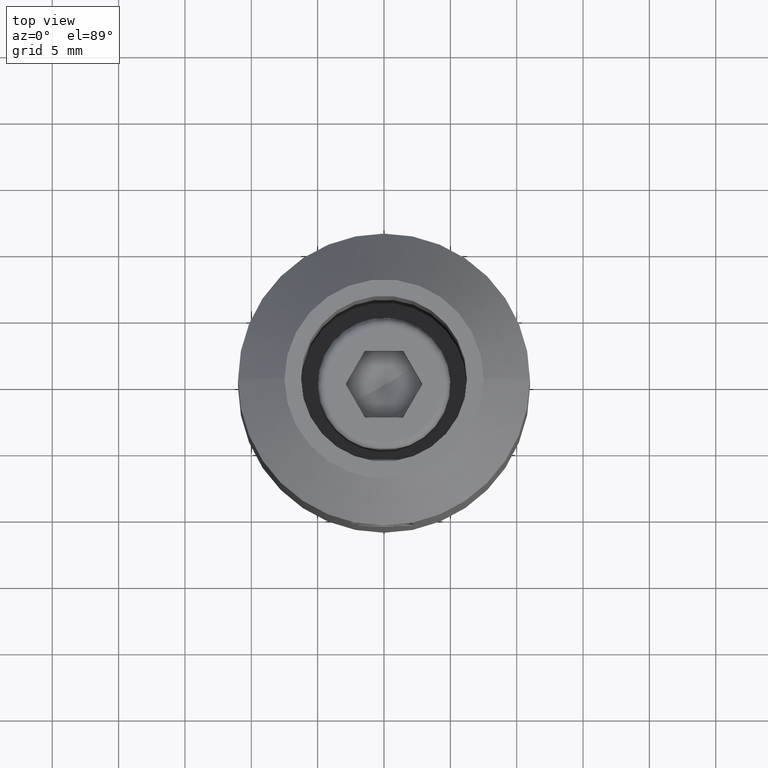
[diagram: clean part render]
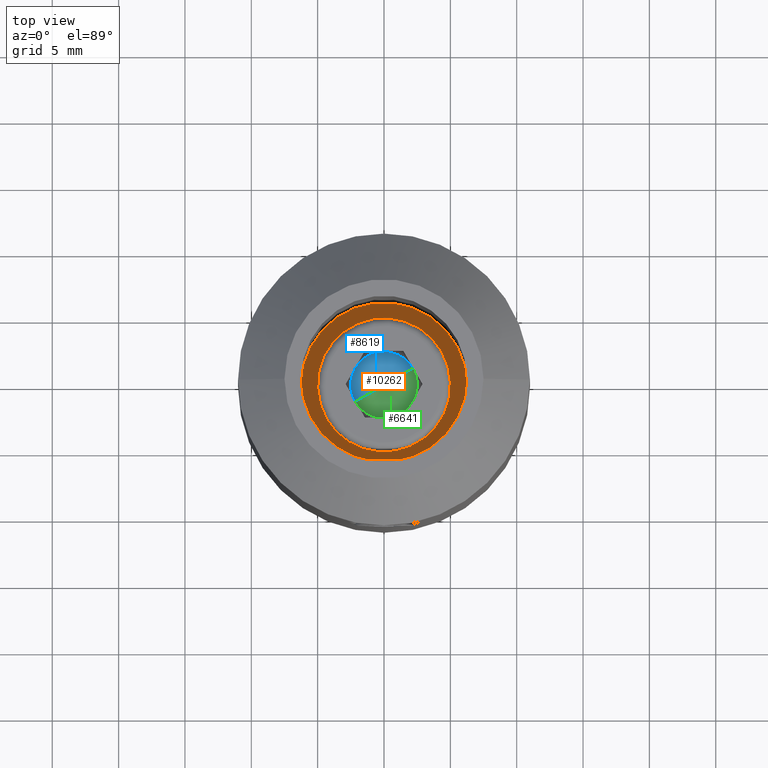
[diagram: same view with three faces highlighted in distinct colors, each labeled with its STEP entity id]
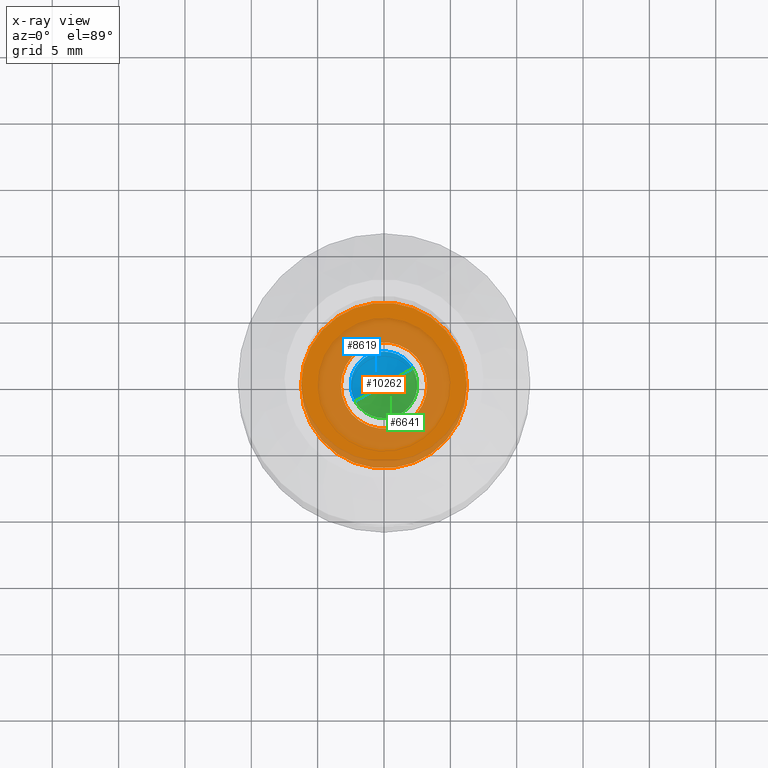
[diagram: x-ray of the same camera — body ghosted, the three highlighted faces saturated]
A machine part, top view with three faces highlighted in distinct colors.
The next image is the same camera in x-ray (body ghosted, the three faces saturated) — at least one of them is partly hidden behind the body in this view.
Their STEP definitions:

[orange] entity #10262 — the highlighted planar face has unit normal (0, 0, 1).
#216 = EDGE_LOOP ( 'NONE', ( #10873, #15915 ) ) ;
#327 = ORIENTED_EDGE ( 'NONE', *, *, #17705, .F. ) ;
#735 = AXIS2_PLACEMENT_3D ( 'NONE', #1777, #10003, #16842 ) ;
#1076 = VERTEX_POINT ( 'NONE', #19168 ) ;
#1777 = CARTESIAN_POINT ( 'NONE',  ( 0.000000000000000000, 0.000000000000000000, 5.499999999999998224 ) ) ;
#2275 = CARTESIAN_POINT ( 'NONE',  ( -6.250000000000000000, 0.000000000000000000, 5.499999999999998224 ) ) ;
#3043 = AXIS2_PLACEMENT_3D ( 'NONE', #8628, #6846, #15261 ) ;
#4596 = CARTESIAN_POINT ( 'NONE',  ( 0.000000000000000000, 0.000000000000000000, 5.500000000000000000 ) ) ;
#4728 = DIRECTION ( 'NONE',  ( -1.000000000000000000, 0.000000000000000000, 0.000000000000000000 ) ) ;
#5354 = FACE_OUTER_BOUND ( 'NONE', #12962, .T. ) ;
#5500 = CIRCLE ( 'NONE', #735, 6.250000000000000000 ) ;
#6496 = DIRECTION ( 'NONE',  ( -0.000000000000000000, -0.000000000000000000, -1.000000000000000000 ) ) ;
#6846 = DIRECTION ( 'NONE',  ( 0.000000000000000000, 0.000000000000000000, 1.000000000000000000 ) ) ;
#7313 = DIRECTION ( 'NONE',  ( -0.000000000000000000, -0.000000000000000000, -1.000000000000000000 ) ) ;
#7436 = AXIS2_PLACEMENT_3D ( 'NONE', #9179, #7313, #9025 ) ;
#8484 = EDGE_CURVE ( 'NONE', #1076, #11543, #11512, .T. ) ;
#8628 = CARTESIAN_POINT ( 'NONE',  ( 0.000000000000000000, 6.250000000000000000, 5.499999999999999112 ) ) ;
#9025 = DIRECTION ( 'NONE',  ( -1.000000000000000000, 0.000000000000000000, 0.000000000000000000 ) ) ;
#9179 = CARTESIAN_POINT ( 'NONE',  ( 0.000000000000000000, 0.000000000000000000, 5.499999999999998224 ) ) ;
#9484 = DIRECTION ( 'NONE',  ( -0.000000000000000000, -0.000000000000000000, -1.000000000000000000 ) ) ;
#9941 = AXIS2_PLACEMENT_3D ( 'NONE', #4596, #9484, #12932 ) ;
#10003 = DIRECTION ( 'NONE',  ( -0.000000000000000000, -0.000000000000000000, -1.000000000000000000 ) ) ;
#10262 = ADVANCED_FACE ( 'NONE', ( #12764, #5354 ), #11956, .T. ) ;
#10532 = VERTEX_POINT ( 'NONE', #21671 ) ;
#10873 = ORIENTED_EDGE ( 'NONE', *, *, #8484, .T. ) ;
#11134 = CIRCLE ( 'NONE', #9941, 3.250000000000000000 ) ;
#11512 = CIRCLE ( 'NONE', #13793, 3.250000000000000000 ) ;
#11543 = VERTEX_POINT ( 'NONE', #12082 ) ;
#11956 = PLANE ( 'NONE',  #3043 ) ;
#12082 = CARTESIAN_POINT ( 'NONE',  ( 3.250000000000000000, 3.980102097228897738E-16, 5.500000000000000000 ) ) ;
#12764 = FACE_BOUND ( 'NONE', #216, .T. ) ;
#12932 = DIRECTION ( 'NONE',  ( -1.000000000000000000, 0.000000000000000000, 0.000000000000000000 ) ) ;
#12962 = EDGE_LOOP ( 'NONE', ( #327, #19903 ) ) ;
#13101 = EDGE_CURVE ( 'NONE', #11543, #1076, #11134, .T. ) ;
#13793 = AXIS2_PLACEMENT_3D ( 'NONE', #19573, #6496, #4728 ) ;
#15102 = EDGE_CURVE ( 'NONE', #10532, #15838, #5500, .T. ) ;
#15261 = DIRECTION ( 'NONE',  ( 1.000000000000000000, 0.000000000000000000, -0.000000000000000000 ) ) ;
#15838 = VERTEX_POINT ( 'NONE', #2275 ) ;
#15915 = ORIENTED_EDGE ( 'NONE', *, *, #13101, .T. ) ;
#16108 = CIRCLE ( 'NONE', #7436, 6.250000000000000000 ) ;
#16842 = DIRECTION ( 'NONE',  ( -1.000000000000000000, 0.000000000000000000, 0.000000000000000000 ) ) ;
#17705 = EDGE_CURVE ( 'NONE', #15838, #10532, #16108, .T. ) ;
#19168 = CARTESIAN_POINT ( 'NONE',  ( -3.250000000000000000, 0.000000000000000000, 5.500000000000000000 ) ) ;
#19573 = CARTESIAN_POINT ( 'NONE',  ( 0.000000000000000000, 0.000000000000000000, 5.500000000000000000 ) ) ;
#19903 = ORIENTED_EDGE ( 'NONE', *, *, #15102, .F. ) ;
#21671 = CARTESIAN_POINT ( 'NONE',  ( 6.250000000000000000, 7.654042494670957606E-16, 5.499999999999998224 ) ) ;

[blue] entity #8619 — the highlighted conical surface has half-angle 60 deg.
#106 = VECTOR ( 'NONE', #13932, 1000.000000000000000 ) ;
#549 = EDGE_CURVE ( 'NONE', #8212, #15463, #3555, .T. ) ;
#578 = DIRECTION ( 'NONE',  ( -1.000000000000000000, 0.000000000000000000, 0.000000000000000000 ) ) ;
#708 = DIRECTION ( 'NONE',  ( -1.000000000000000000, 0.000000000000000000, 0.000000000000000000 ) ) ;
#2892 = CARTESIAN_POINT ( 'NONE',  ( 2.999999999999999112, 2.173723763498971007, 1.255000000000011440 ) ) ;
#3232 = VECTOR ( 'NONE', #15455, 1000.000000000000000 ) ;
#3555 = LINE ( 'NONE', #8624, #106 ) ;
#3569 = CONICAL_SURFACE ( 'NONE', #5012, 2.510000000000030873, 1.047197551196591636 ) ;
#3926 = CARTESIAN_POINT ( 'NONE',  ( 2.999999999999999112, -2.602085213965210642E-15, -2.510000000000048637 ) ) ;
#5012 = AXIS2_PLACEMENT_3D ( 'NONE', #10650, #578, #15859 ) ;
#5066 = VERTEX_POINT ( 'NONE', #5460 ) ;
#5446 = DIRECTION ( 'NONE',  ( -1.000000000000000000, 0.000000000000000000, 0.000000000000000000 ) ) ;
#5460 = CARTESIAN_POINT ( 'NONE',  ( 2.999999999999999112, 3.469446951953614189E-15, 2.510000000000049081 ) ) ;
#5919 = CARTESIAN_POINT ( 'NONE',  ( 2.999999999999999112, 2.173723763498981665, -1.255000000000027427 ) ) ;
#6782 = EDGE_CURVE ( 'NONE', #5066, #11659, #15473, .T. ) ;
#6831 = ORIENTED_EDGE ( 'NONE', *, *, #20702, .T. ) ;
#7007 = FACE_OUTER_BOUND ( 'NONE', #20938, .T. ) ;
#7450 = CARTESIAN_POINT ( 'NONE',  ( 2.999999999999999112, 0.000000000000000000, 0.000000000000000000 ) ) ;
#7743 = LINE ( 'NONE', #15021, #3232 ) ;
#8212 = VERTEX_POINT ( 'NONE', #9350 ) ;
#8619 = ADVANCED_FACE ( 'NONE', ( #7007 ), #3569, .F. ) ;
#8624 = CARTESIAN_POINT ( 'NONE',  ( 2.999999999999999112, 5.602039951023359887E-15, -2.510000000000030873 ) ) ;
#9350 = CARTESIAN_POINT ( 'NONE',  ( 4.449149175665981559, 3.650619993700436680E-17, 6.018531076210112041E-33 ) ) ;
#10055 = DIRECTION ( 'NONE',  ( -1.000000000000000000, 0.000000000000000000, 0.000000000000000000 ) ) ;
#10650 = CARTESIAN_POINT ( 'NONE',  ( 2.999999999999999112, 0.000000000000000000, 0.000000000000000000 ) ) ;
#10678 = EDGE_CURVE ( 'NONE', #8212, #5066, #7743, .T. ) ;
#11382 = AXIS2_PLACEMENT_3D ( 'NONE', #12533, #708, #12744 ) ;
#11659 = VERTEX_POINT ( 'NONE', #2892 ) ;
#12115 = CIRCLE ( 'NONE', #20054, 2.510000000000030873 ) ;
#12533 = CARTESIAN_POINT ( 'NONE',  ( 2.999999999999999112, 0.000000000000000000, 0.000000000000000000 ) ) ;
#12744 = DIRECTION ( 'NONE',  ( 0.000000000000000000, -2.109423746787771394E-15, 1.000000000000000000 ) ) ;
#12750 = VERTEX_POINT ( 'NONE', #5919 ) ;
#13299 = CARTESIAN_POINT ( 'NONE',  ( 2.999999999999999112, 0.000000000000000000, 0.000000000000000000 ) ) ;
#13932 = DIRECTION ( 'NONE',  ( -0.5000000000000006661, 1.932872075936852602E-15, -0.8660254037844382635 ) ) ;
#15021 = CARTESIAN_POINT ( 'NONE',  ( 2.999999999999999112, -5.294653604437371289E-15, 2.510000000000030873 ) ) ;
#15455 = DIRECTION ( 'NONE',  ( -0.5000000000000006661, -1.826814552064362379E-15, 0.8660254037844382635 ) ) ;
#15463 = VERTEX_POINT ( 'NONE', #3926 ) ;
#15473 = CIRCLE ( 'NONE', #11382, 2.510000000000030873 ) ;
#15859 = DIRECTION ( 'NONE',  ( 0.000000000000000000, -2.109423746787771394E-15, 1.000000000000000000 ) ) ;
#16352 = AXIS2_PLACEMENT_3D ( 'NONE', #7450, #5446, #17267 ) ;
#17258 = ORIENTED_EDGE ( 'NONE', *, *, #549, .F. ) ;
#17267 = DIRECTION ( 'NONE',  ( 0.000000000000000000, -2.109423746787771394E-15, 1.000000000000000000 ) ) ;
#17884 = ORIENTED_EDGE ( 'NONE', *, *, #10678, .T. ) ;
#19341 = EDGE_CURVE ( 'NONE', #12750, #15463, #20047, .T. ) ;
#19820 = ORIENTED_EDGE ( 'NONE', *, *, #19341, .T. ) ;
#19975 = ORIENTED_EDGE ( 'NONE', *, *, #6782, .T. ) ;
#20009 = DIRECTION ( 'NONE',  ( 0.000000000000000000, -2.109423746787771394E-15, 1.000000000000000000 ) ) ;
#20047 = CIRCLE ( 'NONE', #16352, 2.510000000000030873 ) ;
#20054 = AXIS2_PLACEMENT_3D ( 'NONE', #13299, #10055, #20009 ) ;
#20702 = EDGE_CURVE ( 'NONE', #11659, #12750, #12115, .T. ) ;
#20938 = EDGE_LOOP ( 'NONE', ( #17258, #17884, #19975, #6831, #19820 ) ) ;

[green] entity #6641 — the highlighted conical surface has half-angle 60 deg.
#106 = VECTOR ( 'NONE', #13932, 1000.000000000000000 ) ;
#549 = EDGE_CURVE ( 'NONE', #8212, #15463, #3555, .T. ) ;
#1801 = CARTESIAN_POINT ( 'NONE',  ( 2.999999999999999112, -2.173723763498991435, 1.255000000000032756 ) ) ;
#2827 = ORIENTED_EDGE ( 'NONE', *, *, #10678, .F. ) ;
#3232 = VECTOR ( 'NONE', #15455, 1000.000000000000000 ) ;
#3370 = CARTESIAN_POINT ( 'NONE',  ( 2.999999999999999112, -2.173723763498985662, -1.255000000000020988 ) ) ;
#3555 = LINE ( 'NONE', #8624, #106 ) ;
#3846 = AXIS2_PLACEMENT_3D ( 'NONE', #11958, #8630, #13727 ) ;
#3926 = CARTESIAN_POINT ( 'NONE',  ( 2.999999999999999112, -2.602085213965210642E-15, -2.510000000000048637 ) ) ;
#4704 = EDGE_LOOP ( 'NONE', ( #2827, #12674, #6905, #12560, #17505 ) ) ;
#5066 = VERTEX_POINT ( 'NONE', #5460 ) ;
#5356 = DIRECTION ( 'NONE',  ( -1.000000000000000000, 0.000000000000000000, 0.000000000000000000 ) ) ;
#5460 = CARTESIAN_POINT ( 'NONE',  ( 2.999999999999999112, 3.469446951953614189E-15, 2.510000000000049081 ) ) ;
#5498 = CARTESIAN_POINT ( 'NONE',  ( 2.999999999999999112, 0.000000000000000000, 0.000000000000000000 ) ) ;
#5574 = AXIS2_PLACEMENT_3D ( 'NONE', #5498, #5356, #13802 ) ;
#6010 = EDGE_CURVE ( 'NONE', #20188, #5066, #21820, .T. ) ;
#6036 = CARTESIAN_POINT ( 'NONE',  ( 2.999999999999999112, 0.000000000000000000, 0.000000000000000000 ) ) ;
#6641 = ADVANCED_FACE ( 'NONE', ( #13362 ), #19967, .F. ) ;
#6905 = ORIENTED_EDGE ( 'NONE', *, *, #18223, .T. ) ;
#7743 = LINE ( 'NONE', #15021, #3232 ) ;
#8212 = VERTEX_POINT ( 'NONE', #9350 ) ;
#8471 = CIRCLE ( 'NONE', #5574, 2.510000000000030873 ) ;
#8624 = CARTESIAN_POINT ( 'NONE',  ( 2.999999999999999112, 5.602039951023359887E-15, -2.510000000000030873 ) ) ;
#8630 = DIRECTION ( 'NONE',  ( -1.000000000000000000, 0.000000000000000000, 0.000000000000000000 ) ) ;
#8852 = CARTESIAN_POINT ( 'NONE',  ( 2.999999999999999112, 0.000000000000000000, 0.000000000000000000 ) ) ;
#9350 = CARTESIAN_POINT ( 'NONE',  ( 4.449149175665981559, 3.650619993700436680E-17, 6.018531076210112041E-33 ) ) ;
#10678 = EDGE_CURVE ( 'NONE', #8212, #5066, #7743, .T. ) ;
#11033 = DIRECTION ( 'NONE',  ( 0.000000000000000000, -2.109423746787771394E-15, 1.000000000000000000 ) ) ;
#11958 = CARTESIAN_POINT ( 'NONE',  ( 2.999999999999999112, 0.000000000000000000, 0.000000000000000000 ) ) ;
#12474 = DIRECTION ( 'NONE',  ( 0.000000000000000000, -2.109423746787771394E-15, 1.000000000000000000 ) ) ;
#12560 = ORIENTED_EDGE ( 'NONE', *, *, #19705, .T. ) ;
#12674 = ORIENTED_EDGE ( 'NONE', *, *, #549, .T. ) ;
#13362 = FACE_OUTER_BOUND ( 'NONE', #4704, .T. ) ;
#13727 = DIRECTION ( 'NONE',  ( 0.000000000000000000, -2.109423746787771394E-15, 1.000000000000000000 ) ) ;
#13802 = DIRECTION ( 'NONE',  ( 0.000000000000000000, -2.109423746787771394E-15, 1.000000000000000000 ) ) ;
#13932 = DIRECTION ( 'NONE',  ( -0.5000000000000006661, 1.932872075936852602E-15, -0.8660254037844382635 ) ) ;
#14765 = AXIS2_PLACEMENT_3D ( 'NONE', #6036, #21338, #11033 ) ;
#14946 = AXIS2_PLACEMENT_3D ( 'NONE', #8852, #15703, #12474 ) ;
#15021 = CARTESIAN_POINT ( 'NONE',  ( 2.999999999999999112, -5.294653604437371289E-15, 2.510000000000030873 ) ) ;
#15455 = DIRECTION ( 'NONE',  ( -0.5000000000000006661, -1.826814552064362379E-15, 0.8660254037844382635 ) ) ;
#15463 = VERTEX_POINT ( 'NONE', #3926 ) ;
#15703 = DIRECTION ( 'NONE',  ( -1.000000000000000000, 0.000000000000000000, 0.000000000000000000 ) ) ;
#17505 = ORIENTED_EDGE ( 'NONE', *, *, #6010, .T. ) ;
#18161 = VERTEX_POINT ( 'NONE', #3370 ) ;
#18223 = EDGE_CURVE ( 'NONE', #15463, #18161, #8471, .T. ) ;
#19705 = EDGE_CURVE ( 'NONE', #18161, #20188, #19766, .T. ) ;
#19766 = CIRCLE ( 'NONE', #14946, 2.510000000000030873 ) ;
#19967 = CONICAL_SURFACE ( 'NONE', #3846, 2.510000000000030873, 1.047197551196591636 ) ;
#20188 = VERTEX_POINT ( 'NONE', #1801 ) ;
#21338 = DIRECTION ( 'NONE',  ( -1.000000000000000000, 0.000000000000000000, 0.000000000000000000 ) ) ;
#21820 = CIRCLE ( 'NONE', #14765, 2.510000000000030873 ) ;